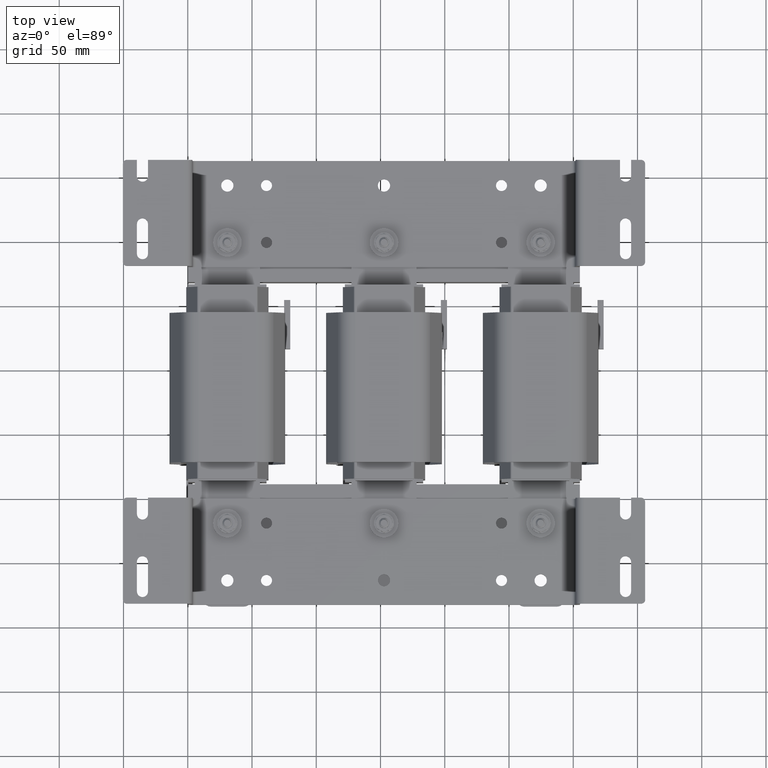
[diagram: clean part render]
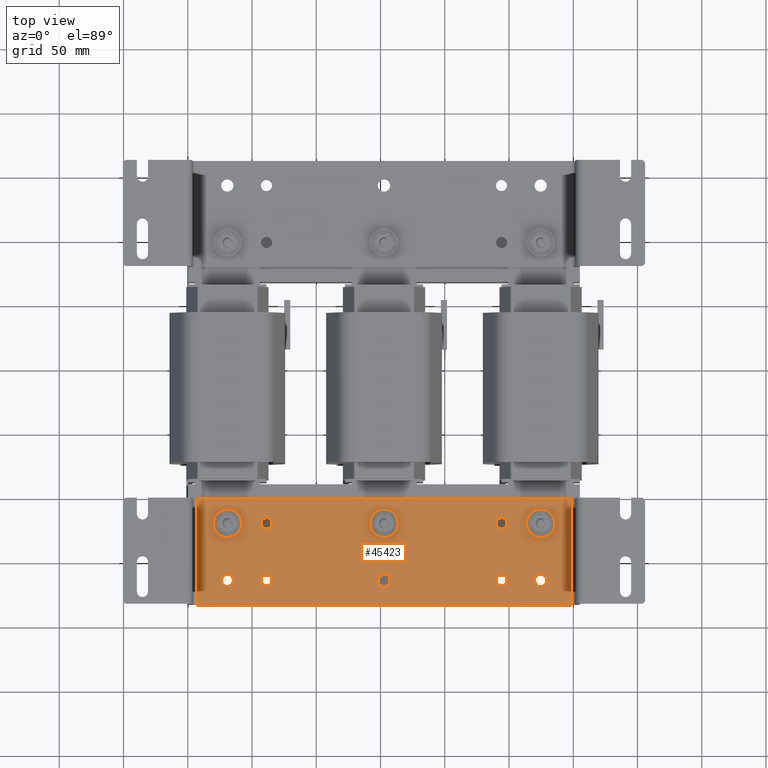
[diagram: same view with one face highlighted and labeled with its STEP entity id]
A machine part, top view. The second image highlights one B-rep face of the part: STEP entity #45423.
In plain terms, the highlighted planar face has unit normal (0, -0, -1).
Its self-contained STEP definition (entity closure, byte-faithful):
#2088=CIRCLE('',#48861,0.1875);
#2090=CIRCLE('',#48864,0.17);
#2092=CIRCLE('',#48867,0.17);
#2094=CIRCLE('',#48870,0.17);
#2096=CIRCLE('',#48873,0.1875);
#2098=CIRCLE('',#48876,0.17);
#2100=CIRCLE('',#48879,0.1875);
#2137=CIRCLE('',#48972,0.1875);
#2138=CIRCLE('',#48973,0.1875);
#2139=CIRCLE('',#48974,0.1875);
#2491=FACE_BOUND('',#8623,.T.);
#2492=FACE_BOUND('',#8624,.T.);
#2493=FACE_BOUND('',#8625,.T.);
#2494=FACE_BOUND('',#8626,.T.);
#2495=FACE_BOUND('',#8627,.T.);
#2496=FACE_BOUND('',#8628,.T.);
#2497=FACE_BOUND('',#8629,.T.);
#2498=FACE_BOUND('',#8630,.T.);
#2499=FACE_BOUND('',#8631,.T.);
#2500=FACE_BOUND('',#8632,.T.);
#3856=PLANE('',#48971);
#6023=FACE_OUTER_BOUND('',#8622,.T.);
#8622=EDGE_LOOP('',(#41131,#41132,#41133,#41134));
#8623=EDGE_LOOP('',(#41135));
#8624=EDGE_LOOP('',(#41136));
#8625=EDGE_LOOP('',(#41137));
#8626=EDGE_LOOP('',(#41138));
#8627=EDGE_LOOP('',(#41139));
#8628=EDGE_LOOP('',(#41140));
#8629=EDGE_LOOP('',(#41141));
#8630=EDGE_LOOP('',(#41142));
#8631=EDGE_LOOP('',(#41143));
#8632=EDGE_LOOP('',(#41144));
#12960=LINE('',#78493,#17241);
#12965=LINE('',#78511,#17246);
#12969=LINE('',#78525,#17250);
#12971=LINE('',#78528,#17252);
#17241=VECTOR('',#58734,0.393700787401575);
#17246=VECTOR('',#58757,0.393700787401575);
#17250=VECTOR('',#58777,0.393700787401575);
#17252=VECTOR('',#58781,0.393700787401575);
#22346=VERTEX_POINT('',#78219);
#22348=VERTEX_POINT('',#78225);
#22350=VERTEX_POINT('',#78231);
#22352=VERTEX_POINT('',#78237);
#22354=VERTEX_POINT('',#78243);
#22356=VERTEX_POINT('',#78249);
#22358=VERTEX_POINT('',#78255);
#22431=VERTEX_POINT('',#78490);
#22432=VERTEX_POINT('',#78492);
#22435=VERTEX_POINT('',#78508);
#22436=VERTEX_POINT('',#78510);
#22439=VERTEX_POINT('',#78529);
#22440=VERTEX_POINT('',#78531);
#22441=VERTEX_POINT('',#78533);
#28610=EDGE_CURVE('',#22346,#22346,#2088,.T.);
#28613=EDGE_CURVE('',#22348,#22348,#2090,.T.);
#28616=EDGE_CURVE('',#22350,#22350,#2092,.T.);
#28619=EDGE_CURVE('',#22352,#22352,#2094,.T.);
#28622=EDGE_CURVE('',#22354,#22354,#2096,.T.);
#28625=EDGE_CURVE('',#22356,#22356,#2098,.T.);
#28628=EDGE_CURVE('',#22358,#22358,#2100,.T.);
#28745=EDGE_CURVE('',#22432,#22431,#12960,.T.);
#28754=EDGE_CURVE('',#22436,#22435,#12965,.T.);
#28761=EDGE_CURVE('',#22432,#22435,#12969,.T.);
#28763=EDGE_CURVE('',#22436,#22431,#12971,.T.);
#28764=EDGE_CURVE('',#22439,#22439,#2137,.T.);
#28765=EDGE_CURVE('',#22440,#22440,#2138,.T.);
#28766=EDGE_CURVE('',#22441,#22441,#2139,.T.);
#41131=ORIENTED_EDGE('',*,*,#28745,.T.);
#41132=ORIENTED_EDGE('',*,*,#28763,.F.);
#41133=ORIENTED_EDGE('',*,*,#28754,.T.);
#41134=ORIENTED_EDGE('',*,*,#28761,.F.);
#41135=ORIENTED_EDGE('',*,*,#28610,.T.);
#41136=ORIENTED_EDGE('',*,*,#28613,.T.);
#41137=ORIENTED_EDGE('',*,*,#28616,.T.);
#41138=ORIENTED_EDGE('',*,*,#28619,.T.);
#41139=ORIENTED_EDGE('',*,*,#28622,.T.);
#41140=ORIENTED_EDGE('',*,*,#28625,.T.);
#41141=ORIENTED_EDGE('',*,*,#28628,.T.);
#41142=ORIENTED_EDGE('',*,*,#28764,.T.);
#41143=ORIENTED_EDGE('',*,*,#28765,.T.);
#41144=ORIENTED_EDGE('',*,*,#28766,.T.);
#45423=ADVANCED_FACE('',(#6023,#2491,#2492,#2493,#2494,#2495,#2496,#2497,
#2498,#2499,#2500),#3856,.F.);
#48861=AXIS2_PLACEMENT_3D('',#78221,#58455,#58456);
#48864=AXIS2_PLACEMENT_3D('',#78227,#58462,#58463);
#48867=AXIS2_PLACEMENT_3D('',#78233,#58469,#58470);
#48870=AXIS2_PLACEMENT_3D('',#78239,#58476,#58477);
#48873=AXIS2_PLACEMENT_3D('',#78245,#58483,#58484);
#48876=AXIS2_PLACEMENT_3D('',#78251,#58490,#58491);
#48879=AXIS2_PLACEMENT_3D('',#78257,#58497,#58498);
#48971=AXIS2_PLACEMENT_3D('',#78527,#58779,#58780);
#48972=AXIS2_PLACEMENT_3D('',#78530,#58782,#58783);
#48973=AXIS2_PLACEMENT_3D('',#78532,#58784,#58785);
#48974=AXIS2_PLACEMENT_3D('',#78534,#58786,#58787);
#58455=DIRECTION('center_axis',(0.,0.,1.));
#58456=DIRECTION('ref_axis',(-1.,0.,0.));
#58462=DIRECTION('center_axis',(0.,0.,1.));
#58463=DIRECTION('ref_axis',(-1.,0.,0.));
#58469=DIRECTION('center_axis',(0.,0.,1.));
#58470=DIRECTION('ref_axis',(-1.,0.,0.));
#58476=DIRECTION('center_axis',(0.,0.,1.));
#58477=DIRECTION('ref_axis',(-1.,0.,0.));
#58483=DIRECTION('center_axis',(0.,0.,1.));
#58484=DIRECTION('ref_axis',(-1.,0.,0.));
#58490=DIRECTION('center_axis',(0.,0.,1.));
#58491=DIRECTION('ref_axis',(-1.,0.,0.));
#58497=DIRECTION('center_axis',(0.,0.,1.));
#58498=DIRECTION('ref_axis',(-1.,0.,0.));
#58734=DIRECTION('',(0.,-1.,0.));
#58757=DIRECTION('',(-2.95880151929176E-16,1.,0.));
#58777=DIRECTION('',(-1.,-2.3311769545935E-16,0.));
#58779=DIRECTION('center_axis',(0.,0.,1.));
#58780=DIRECTION('ref_axis',(1.,0.,0.));
#58781=DIRECTION('',(1.,0.,0.));
#58782=DIRECTION('center_axis',(0.,0.,1.));
#58783=DIRECTION('ref_axis',(-1.,0.,0.));
#58784=DIRECTION('center_axis',(0.,0.,1.));
#58785=DIRECTION('ref_axis',(-1.,0.,0.));
#58786=DIRECTION('center_axis',(0.,0.,1.));
#58787=DIRECTION('ref_axis',(-1.,0.,0.));
#78219=CARTESIAN_POINT('',(1.3875,0.75,0.));
#78221=CARTESIAN_POINT('Origin',(1.2,0.75,0.));
#78225=CARTESIAN_POINT('',(2.57,0.75,0.));
#78227=CARTESIAN_POINT('Origin',(2.4,0.75,0.));
#78231=CARTESIAN_POINT('',(9.77,2.5,0.));
#78233=CARTESIAN_POINT('Origin',(9.6,2.5,0.));
#78237=CARTESIAN_POINT('',(2.57,2.5,0.));
#78239=CARTESIAN_POINT('Origin',(2.4,2.5,0.));
#78243=CARTESIAN_POINT('',(6.1875,0.75,0.));
#78245=CARTESIAN_POINT('Origin',(6.,0.75,0.));
#78249=CARTESIAN_POINT('',(9.77,0.75,0.));
#78251=CARTESIAN_POINT('Origin',(9.6,0.75,0.));
#78255=CARTESIAN_POINT('',(10.9875,0.75,0.));
#78257=CARTESIAN_POINT('Origin',(10.8,0.75,0.));
#78490=CARTESIAN_POINT('',(11.731,-1.15769833991197E-16,-4.37095678986282E-17));
#78492=CARTESIAN_POINT('',(11.731,3.25,-4.37095678986282E-17));
#78493=CARTESIAN_POINT('',(11.731,2.4375,0.));
#78508=CARTESIAN_POINT('',(0.268999999999999,3.25,-4.37095678986282E-17));
#78510=CARTESIAN_POINT('',(0.269,8.23574972426595E-17,-4.37095678986282E-17));
#78511=CARTESIAN_POINT('',(0.269,0.812499999999999,0.));
#78525=CARTESIAN_POINT('',(12.,3.25,0.));
#78527=CARTESIAN_POINT('Origin',(6.,1.625,0.));
#78528=CARTESIAN_POINT('',(0.,0.,0.));
#78529=CARTESIAN_POINT('',(10.9875,2.5,0.));
#78530=CARTESIAN_POINT('Origin',(10.8,2.5,0.));
#78531=CARTESIAN_POINT('',(6.1875,2.5,0.));
#78532=CARTESIAN_POINT('Origin',(6.,2.5,0.));
#78533=CARTESIAN_POINT('',(1.3875,2.5,0.));
#78534=CARTESIAN_POINT('Origin',(1.2,2.5,0.));